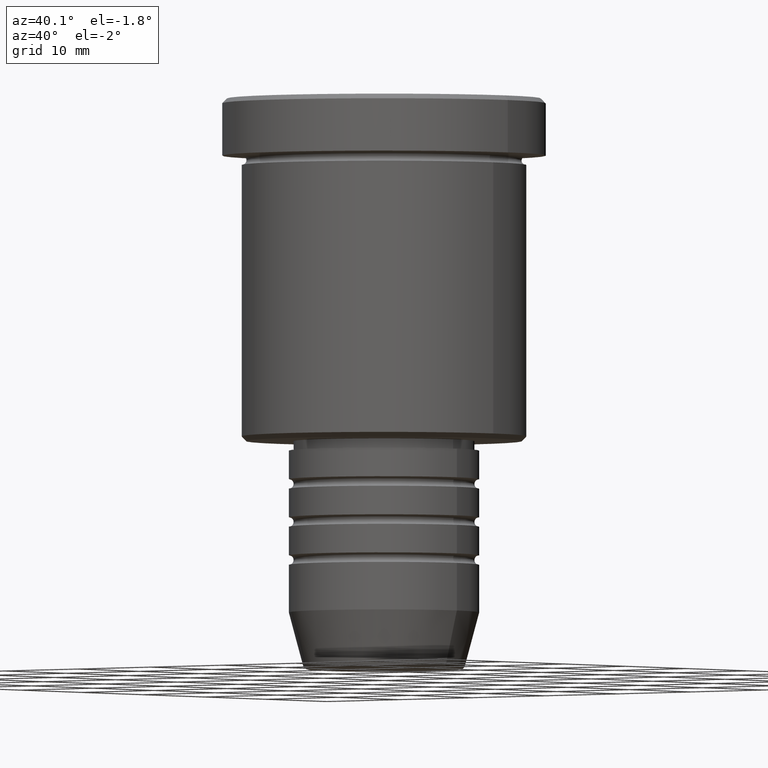
[diagram: clean part render]
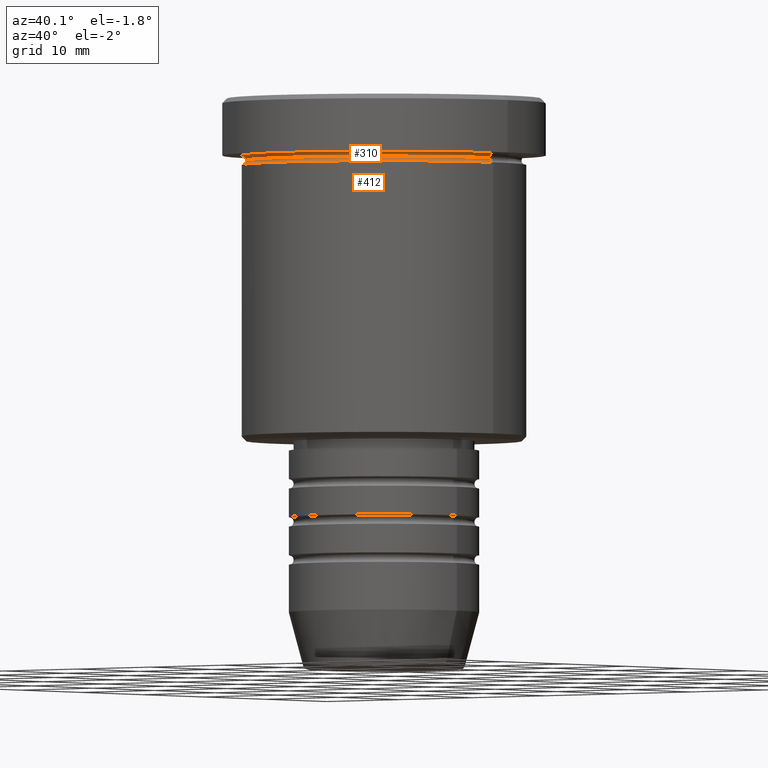
[diagram: same view with one multi-face feature highlighted, each face labeled with its STEP entity id]
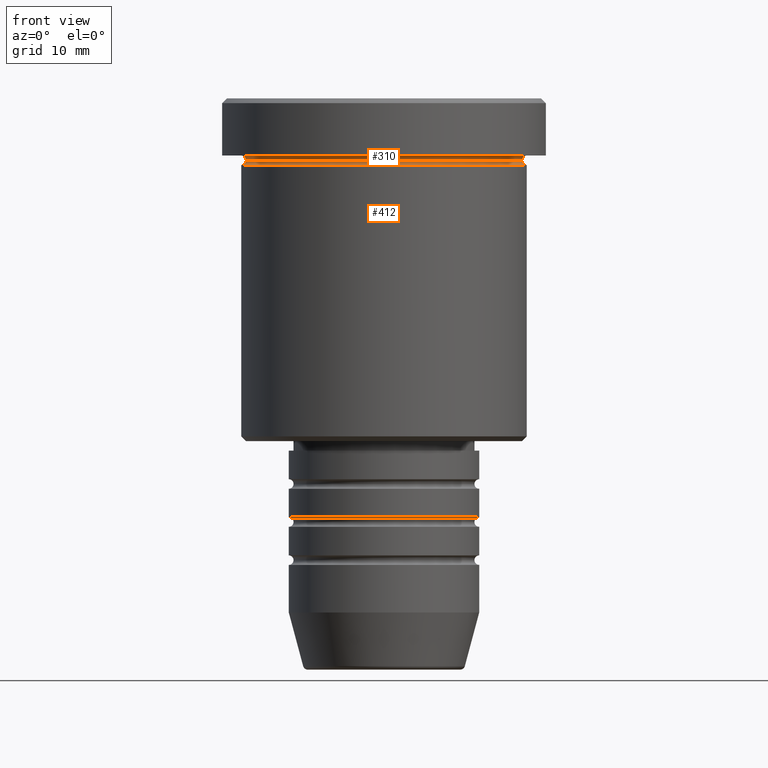
[diagram: same view with one multi-face feature highlighted, each face labeled with its STEP entity id]
A machine part, auxiliary view. The highlighted faces form ONE feature: a constant-radius fillet chain: 2 tangent blend faces with common blend radius 0.5 mm. The faces share edges in the B-rep.
A second angle (front view) of the same feature is appended — it is thin or edge-on in the first view.
Their STEP definitions:
[1] entity #412 (Torus):
#52 = DIRECTION ( 'NONE',  ( -1.000000000000000000, 1.224646799147349509E-16, 0.000000000000000000 ) ) ;
#53 = EDGE_CURVE ( 'NONE', #150, #983, #118, .T. ) ;
#59 = AXIS2_PLACEMENT_3D ( 'NONE', #174, #548, #52 ) ;
#88 = CARTESIAN_POINT ( 'NONE',  ( 0.000000000000000000, 0.000000000000000000, -6.499999999999995559 ) ) ;
#99 = AXIS2_PLACEMENT_3D ( 'NONE', #319, #967, #331 ) ;
#107 = VERTEX_POINT ( 'NONE', #1065 ) ;
#118 = CIRCLE ( 'NONE', #847, 14.49999999999999822 ) ;
#150 = VERTEX_POINT ( 'NONE', #226 ) ;
#169 = CARTESIAN_POINT ( 'NONE',  ( 0.000000000000000000, 0.000000000000000000, -6.999999999999995559 ) ) ;
#174 = CARTESIAN_POINT ( 'NONE',  ( -15.00000000000000000, 1.836970198721029589E-15, -6.499999999999995559 ) ) ;
#226 = CARTESIAN_POINT ( 'NONE',  ( -14.49999999999999822, 1.806354028742345802E-15, -6.499999999999995559 ) ) ;
#238 = TOROIDAL_SURFACE ( 'NONE', #658, 15.00000000000000000, 0.5000000000000000000 ) ;
#247 = CARTESIAN_POINT ( 'NONE',  ( 14.49999999999999822, 0.000000000000000000, -6.499999999999995559 ) ) ;
#250 = CARTESIAN_POINT ( 'NONE',  ( 15.00000000000000000, 0.000000000000000000, -6.999999999999995559 ) ) ;
#292 = DIRECTION ( 'NONE',  ( 1.000000000000000000, 0.000000000000000000, 0.000000000000000000 ) ) ;
#299 = EDGE_CURVE ( 'NONE', #150, #107, #532, .T. ) ;
#312 = VERTEX_POINT ( 'NONE', #250 ) ;
#319 = CARTESIAN_POINT ( 'NONE',  ( 15.00000000000000000, 0.000000000000000000, -6.499999999999995559 ) ) ;
#331 = DIRECTION ( 'NONE',  ( 0.000000000000000000, 0.000000000000000000, -1.000000000000000000 ) ) ;
#377 = ORIENTED_EDGE ( 'NONE', *, *, #568, .F. ) ;
#412 = ADVANCED_FACE ( 'NONE', ( #502 ), #238, .F. ) ;
#502 = FACE_OUTER_BOUND ( 'NONE', #512, .T. ) ;
#512 = EDGE_LOOP ( 'NONE', ( #763, #671, #1172, #377 ) ) ;
#532 = CIRCLE ( 'NONE', #59, 0.5000000000000004441 ) ;
#543 = DIRECTION ( 'NONE',  ( -0.000000000000000000, -0.000000000000000000, 1.000000000000000000 ) ) ;
#548 = DIRECTION ( 'NONE',  ( 1.224646799147353207E-16, 1.000000000000000000, 0.000000000000000000 ) ) ;
#568 = EDGE_CURVE ( 'NONE', #983, #312, #1016, .T. ) ;
#585 = CARTESIAN_POINT ( 'NONE',  ( 0.000000000000000000, 0.000000000000000000, -6.499999999999995559 ) ) ;
#658 = AXIS2_PLACEMENT_3D ( 'NONE', #585, #929, #685 ) ;
#671 = ORIENTED_EDGE ( 'NONE', *, *, #299, .T. ) ;
#685 = DIRECTION ( 'NONE',  ( 1.000000000000000000, 0.000000000000000000, 0.000000000000000000 ) ) ;
#763 = ORIENTED_EDGE ( 'NONE', *, *, #53, .F. ) ;
#847 = AXIS2_PLACEMENT_3D ( 'NONE', #88, #851, #292 ) ;
#851 = DIRECTION ( 'NONE',  ( -0.000000000000000000, -0.000000000000000000, 1.000000000000000000 ) ) ;
#869 = CIRCLE ( 'NONE', #960, 15.00000000000000000 ) ;
#915 = DIRECTION ( 'NONE',  ( 1.000000000000000000, 0.000000000000000000, 0.000000000000000000 ) ) ;
#929 = DIRECTION ( 'NONE',  ( -0.000000000000000000, -0.000000000000000000, 1.000000000000000000 ) ) ;
#960 = AXIS2_PLACEMENT_3D ( 'NONE', #169, #543, #915 ) ;
#967 = DIRECTION ( 'NONE',  ( 0.000000000000000000, -1.000000000000000000, 0.000000000000000000 ) ) ;
#983 = VERTEX_POINT ( 'NONE', #247 ) ;
#1005 = EDGE_CURVE ( 'NONE', #107, #312, #869, .T. ) ;
#1016 = CIRCLE ( 'NONE', #99, 0.5000000000000004441 ) ;
#1065 = CARTESIAN_POINT ( 'NONE',  ( -15.00000000000000000, 1.836970198721029589E-15, -6.999999999999995559 ) ) ;
#1172 = ORIENTED_EDGE ( 'NONE', *, *, #1005, .T. ) ;
[2] entity #310 (Torus):
#48 = EDGE_CURVE ( 'NONE', #948, #129, #935, .T. ) ;
#53 = EDGE_CURVE ( 'NONE', #150, #983, #118, .T. ) ;
#80 = AXIS2_PLACEMENT_3D ( 'NONE', #335, #541, #632 ) ;
#88 = CARTESIAN_POINT ( 'NONE',  ( 0.000000000000000000, 0.000000000000000000, -6.499999999999995559 ) ) ;
#118 = CIRCLE ( 'NONE', #847, 14.49999999999999822 ) ;
#129 = VERTEX_POINT ( 'NONE', #1051 ) ;
#150 = VERTEX_POINT ( 'NONE', #226 ) ;
#187 = DIRECTION ( 'NONE',  ( 0.000000000000000000, 0.000000000000000000, -1.000000000000000000 ) ) ;
#212 = CARTESIAN_POINT ( 'NONE',  ( 15.00000000000000000, 1.836970198721029589E-15, -6.499999999999995559 ) ) ;
#226 = CARTESIAN_POINT ( 'NONE',  ( -14.49999999999999822, 1.806354028742345802E-15, -6.499999999999995559 ) ) ;
#247 = CARTESIAN_POINT ( 'NONE',  ( 14.49999999999999822, 0.000000000000000000, -6.499999999999995559 ) ) ;
#248 = DIRECTION ( 'NONE',  ( -0.000000000000000000, -1.000000000000000000, -0.000000000000000000 ) ) ;
#272 = CARTESIAN_POINT ( 'NONE',  ( 0.000000000000000000, 0.000000000000000000, -5.999999999999994671 ) ) ;
#292 = DIRECTION ( 'NONE',  ( 1.000000000000000000, 0.000000000000000000, 0.000000000000000000 ) ) ;
#310 = ADVANCED_FACE ( 'NONE', ( #1082 ), #610, .F. ) ;
#335 = CARTESIAN_POINT ( 'NONE',  ( 0.000000000000000000, 0.000000000000000000, -6.499999999999995559 ) ) ;
#368 = AXIS2_PLACEMENT_3D ( 'NONE', #559, #248, #187 ) ;
#370 = DIRECTION ( 'NONE',  ( -1.000000000000000000, 0.000000000000000000, 0.000000000000000000 ) ) ;
#411 = ORIENTED_EDGE ( 'NONE', *, *, #762, .F. ) ;
#415 = CARTESIAN_POINT ( 'NONE',  ( -15.00000000000000000, 0.000000000000000000, -5.999999999999994671 ) ) ;
#419 = EDGE_CURVE ( 'NONE', #983, #129, #593, .T. ) ;
#424 = ORIENTED_EDGE ( 'NONE', *, *, #48, .F. ) ;
#429 = AXIS2_PLACEMENT_3D ( 'NONE', #212, #877, #845 ) ;
#471 = AXIS2_PLACEMENT_3D ( 'NONE', #272, #930, #370 ) ;
#541 = DIRECTION ( 'NONE',  ( 0.000000000000000000, 0.000000000000000000, -1.000000000000000000 ) ) ;
#559 = CARTESIAN_POINT ( 'NONE',  ( -15.00000000000000000, 0.000000000000000000, -6.499999999999995559 ) ) ;
#593 = CIRCLE ( 'NONE', #429, 0.5000000000000004441 ) ;
#610 = TOROIDAL_SURFACE ( 'NONE', #80, 15.00000000000000000, 0.5000000000000000000 ) ;
#632 = DIRECTION ( 'NONE',  ( -1.000000000000000000, 0.000000000000000000, 0.000000000000000000 ) ) ;
#762 = EDGE_CURVE ( 'NONE', #150, #948, #850, .T. ) ;
#845 = DIRECTION ( 'NONE',  ( -1.000000000000000000, -1.224646799147349509E-16, 0.000000000000000000 ) ) ;
#847 = AXIS2_PLACEMENT_3D ( 'NONE', #88, #851, #292 ) ;
#850 = CIRCLE ( 'NONE', #368, 0.5000000000000004441 ) ;
#851 = DIRECTION ( 'NONE',  ( -0.000000000000000000, -0.000000000000000000, 1.000000000000000000 ) ) ;
#877 = DIRECTION ( 'NONE',  ( -1.224646799147353207E-16, 1.000000000000000000, 0.000000000000000000 ) ) ;
#889 = EDGE_LOOP ( 'NONE', ( #1008, #1093, #424, #411 ) ) ;
#930 = DIRECTION ( 'NONE',  ( -0.000000000000000000, -0.000000000000000000, 1.000000000000000000 ) ) ;
#935 = CIRCLE ( 'NONE', #471, 15.00000000000000000 ) ;
#948 = VERTEX_POINT ( 'NONE', #415 ) ;
#983 = VERTEX_POINT ( 'NONE', #247 ) ;
#1008 = ORIENTED_EDGE ( 'NONE', *, *, #53, .T. ) ;
#1051 = CARTESIAN_POINT ( 'NONE',  ( 15.00000000000000000, 1.836970198721029589E-15, -5.999999999999994671 ) ) ;
#1082 = FACE_OUTER_BOUND ( 'NONE', #889, .T. ) ;
#1093 = ORIENTED_EDGE ( 'NONE', *, *, #419, .T. ) ;